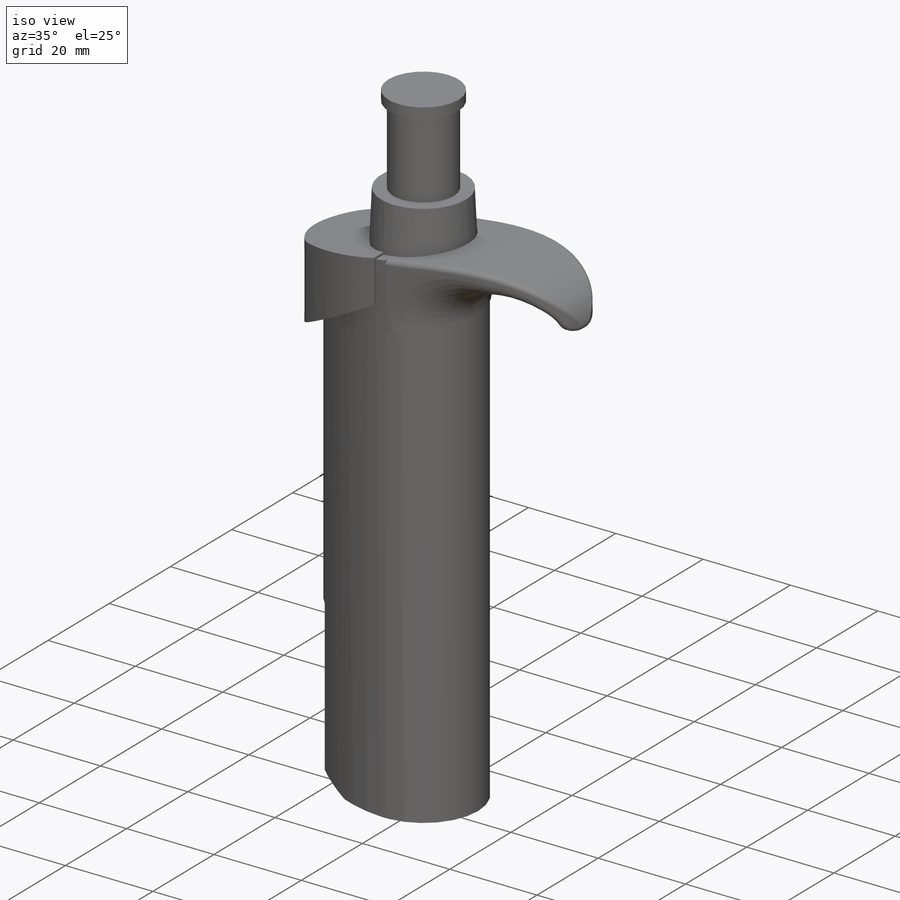
[diagram: iso view]
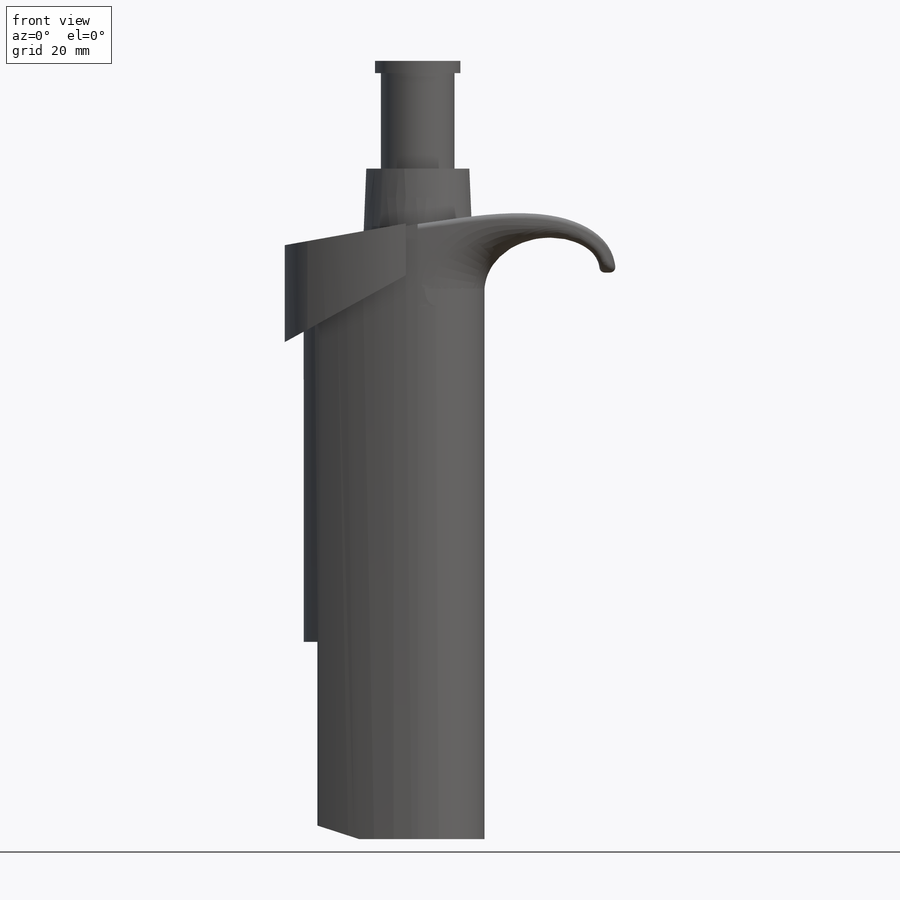
[diagram: front view]
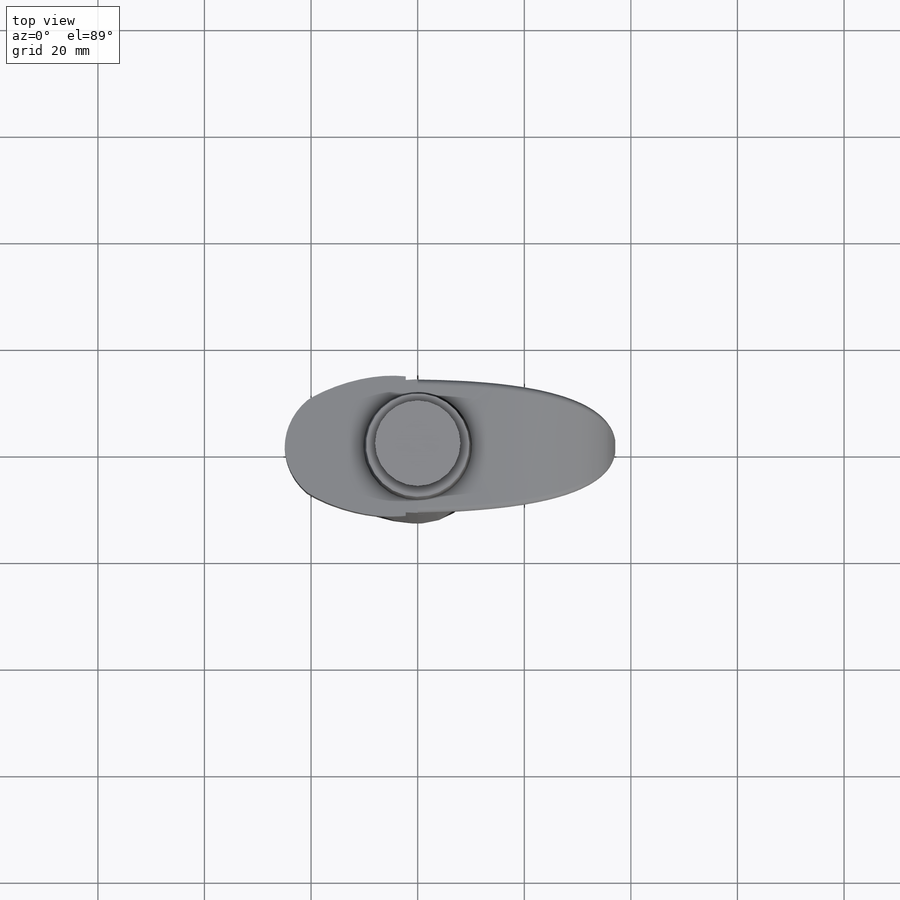
[diagram: top view]
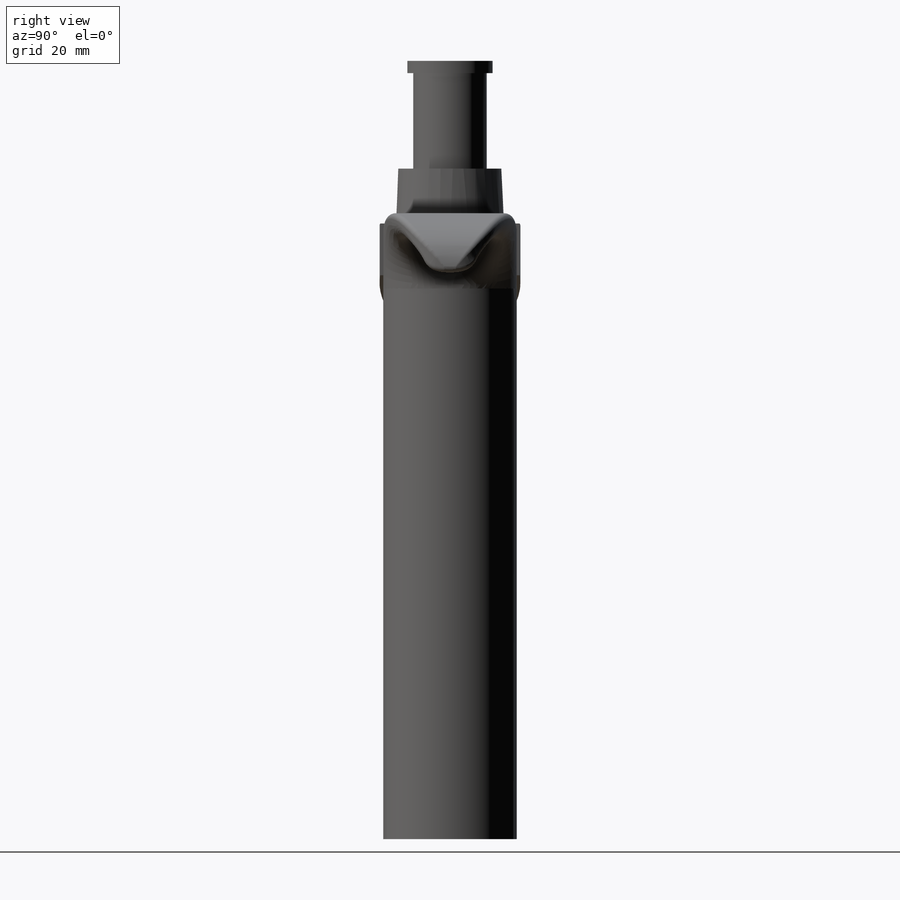
[diagram: right view]
SOLIDWORKS PART (.sldprt)
format: sldprt  version: not decoded by parser v0  size: 575,488 bytes
history: native  units: mm
features: sketch x14, extrude x7, cut_extrude x5, plane x2, fillet x2, material x1 (+11 scaffold rows collapsed)
feature tree (42):
  scaffold x11  (default folders/planes/origin — collapsed)
  material  "Material <not specified>"
  sketch  "Sketch1"  dims[c1.D1=25.06mm c1.D5=1.0mm c1.D2=6.3mm c1.D3=13.67mm c1.D4=19.37mm c2.D3=5.87mm]
  extrude  "Boss-Extrude1"  Depth=37mm
  sketch  "Sketch2"
  extrude  "Boss-Extrude2"  Depth=78.4mm
  sketch  "Sketch3"  dims[c1.D1=6.0mm c1.D2=3.3mm c1.D3=3.0mm c1.D4=8.36mm c1.D5=24.63mm c1.D6=2.0mm c2.D4=2.0mm]
  extrude  "Boss-Extrude3"  Depth=25mm
  sketch  "Sketch4"
  cut_extrude  "Cut-Extrude1"  Depth=30mm
  sketch  "Sketch7"  dims[D1=20.3mm]
  cut_extrude  "Cut-Extrude2"  Depth=25mm
  sketch  "Sketch8"
  extrude  "Boss-Extrude4"  Depth=10mm
  plane  "Plane1"  Offset=10.8mm
  sketch  "Sketch9"  dims[D1=19.4mm]
  sketch  "Sketch10"  dims[D1=13.8mm]
  extrude  "Boss-Extrude5"  Depth=17.9mm
  sketch  "Sketch11"  dims[D1=16.0mm]
  extrude  "Boss-Extrude6"  Depth=2.3mm
  sketch  "3DSketch1"  dims[D1=17.7mm D2=21.64mm D3=10.43mm D4=10.43mm]
  plane  "Plane2"
  sketch  "Sketch6"  dims[D1=3.6mm]
  extrude  "Boss-Extrude7"  Depth=0.5mm
  sketch  "Sketch12"  dims[D1=11.0mm D2=2.6mm D3=8.0mm]
  cut_extrude  "Cut-Extrude3"  Depth=30mm
  sketch  "Sketch14"
  cut_extrude  "Cut-Extrude4"  Depth=20mm
  sketch  "Sketch15"
  cut_extrude  "Cut-Extrude5"  Depth=20mm
  fillet  "Fillet1"  Radius=1mm
  fillet  "Fillet2"  Radius=1mm
decode coverage: 23 of 28 modeling features carry decoded parameters
note: suppression state not decoded; provenance and decode notes live in map.json
